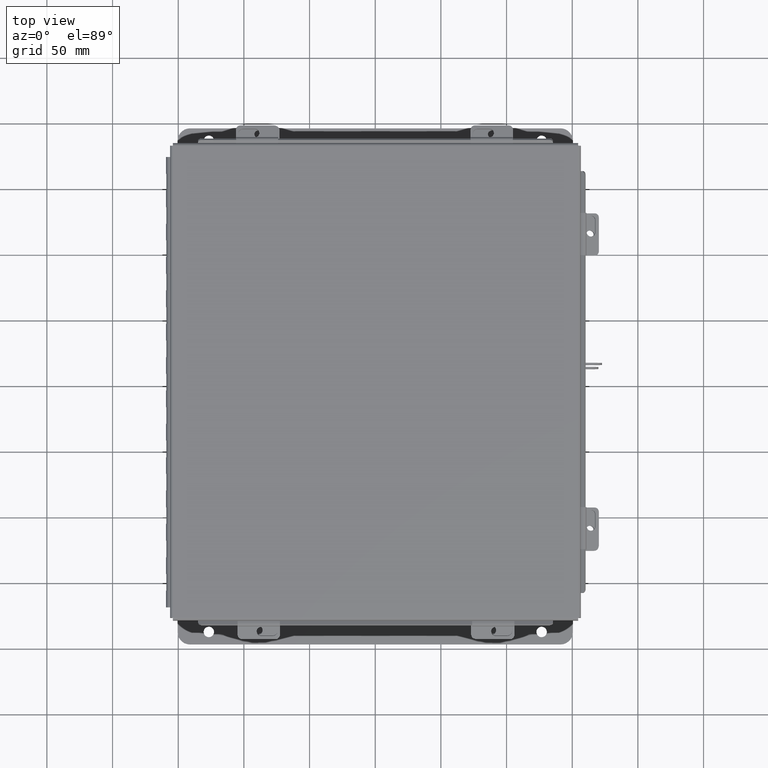
[diagram: clean part render]
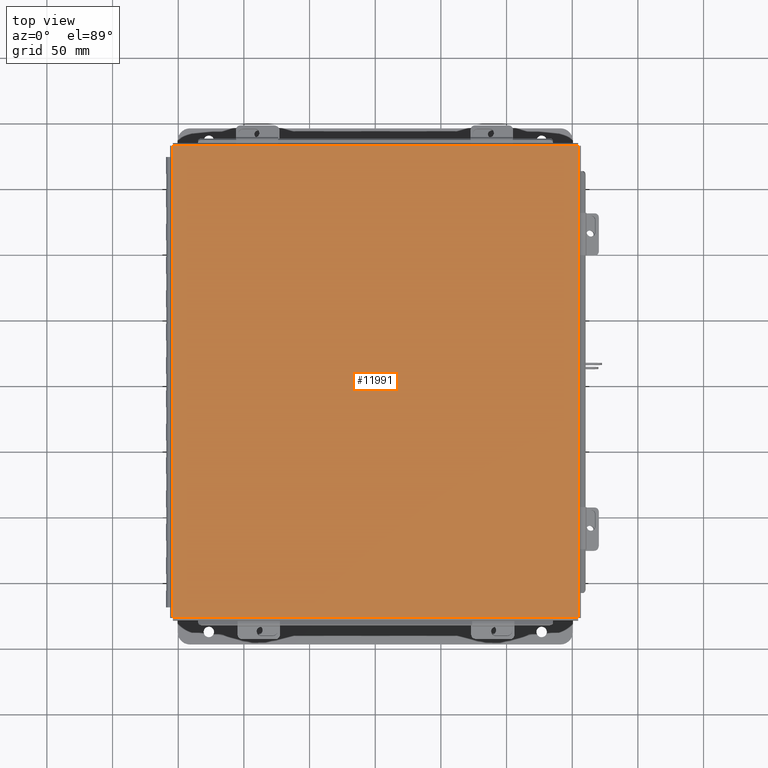
[diagram: same view with one face highlighted and labeled with its STEP entity id]
A machine part, top view. The second image highlights one B-rep face of the part: STEP entity #11991.
In plain terms, the highlighted planar face has unit normal (-0, -0, 1).
Its self-contained STEP definition (entity closure, byte-faithful):
#75 = CARTESIAN_POINT ( 'NONE',  ( -6.068550000000000100, 7.068549999999999200, -0.07469999999999993300 ) ) ;
#991 = CARTESIAN_POINT ( 'NONE',  ( 0.0000000000000000000, 0.0000000000000000000, -0.07470000000000000300 ) ) ;
#1144 = EDGE_CURVE ( 'NONE', #4051, #7149, #7077, .T. ) ;
#1642 = ORIENTED_EDGE ( 'NONE', *, *, #7476, .T. ) ;
#2522 = VECTOR ( 'NONE', #8043, 39.37007874015748100 ) ;
#3156 = VECTOR ( 'NONE', #17241, 39.37007874015748100 ) ;
#4051 = VERTEX_POINT ( 'NONE', #13720 ) ;
#5104 = FACE_OUTER_BOUND ( 'NONE', #17122, .T. ) ;
#5324 = CARTESIAN_POINT ( 'NONE',  ( 6.074478932188137400, -7.068550000000001000, -0.07469999999999993300 ) ) ;
#5441 = DIRECTION ( 'NONE',  ( 0.0000000000000000000, 0.0000000000000000000, -1.000000000000000000 ) ) ;
#5813 = CARTESIAN_POINT ( 'NONE',  ( 6.068550000000000100, 7.074478932188133800, -0.07469999999999880900 ) ) ;
#6088 = VERTEX_POINT ( 'NONE', #7684 ) ;
#6384 = VECTOR ( 'NONE', #15990, 39.37007874015748100 ) ;
#6830 = DIRECTION ( 'NONE',  ( -1.000000000000000000, 0.0000000000000000000, 0.0000000000000000000 ) ) ;
#7077 = LINE ( 'NONE', #9779, #3156 ) ;
#7149 = VERTEX_POINT ( 'NONE', #75 ) ;
#7246 = AXIS2_PLACEMENT_3D ( 'NONE', #991, #5441, #15635 ) ;
#7476 = EDGE_CURVE ( 'NONE', #6088, #4051, #17301, .T. ) ;
#7684 = CARTESIAN_POINT ( 'NONE',  ( 6.068550000000000100, -7.068550000000001000, -0.07469999999999993300 ) ) ;
#7918 = ORIENTED_EDGE ( 'NONE', *, *, #13696, .T. ) ;
#8043 = DIRECTION ( 'NONE',  ( 1.000000000000000000, 0.0000000000000000000, 0.0000000000000000000 ) ) ;
#9779 = CARTESIAN_POINT ( 'NONE',  ( -6.068550000000000100, -7.074478932188136500, -0.07470000000000107100 ) ) ;
#10334 = VERTEX_POINT ( 'NONE', #13244 ) ;
#10494 = ORIENTED_EDGE ( 'NONE', *, *, #1144, .T. ) ;
#11991 = ADVANCED_FACE ( 'NONE', ( #5104 ), #17054, .T. ) ;
#13244 = CARTESIAN_POINT ( 'NONE',  ( 6.068550000000000100, 7.068549999999999200, -0.07469999999999880900 ) ) ;
#13696 = EDGE_CURVE ( 'NONE', #7149, #10334, #18069, .T. ) ;
#13720 = CARTESIAN_POINT ( 'NONE',  ( -6.068550000000000100, -7.068550000000001000, -0.07470000000000107100 ) ) ;
#15635 = DIRECTION ( 'NONE',  ( -1.000000000000000000, 0.0000000000000000000, -0.0000000000000000000 ) ) ;
#15990 = DIRECTION ( 'NONE',  ( -0.0000000000000000000, -1.000000000000000000, -8.208677865577646300E-017 ) ) ;
#16747 = ORIENTED_EDGE ( 'NONE', *, *, #17041, .T. ) ;
#16808 = VECTOR ( 'NONE', #6830, 39.37007874015748100 ) ;
#17041 = EDGE_CURVE ( 'NONE', #10334, #6088, #18472, .T. ) ;
#17054 = PLANE ( 'NONE',  #7246 ) ;
#17122 = EDGE_LOOP ( 'NONE', ( #7918, #16747, #1642, #10494 ) ) ;
#17241 = DIRECTION ( 'NONE',  ( -0.0000000000000000000, 1.000000000000000000, 8.208677865577646300E-017 ) ) ;
#17301 = LINE ( 'NONE', #5324, #16808 ) ;
#18069 = LINE ( 'NONE', #18214, #2522 ) ;
#18214 = CARTESIAN_POINT ( 'NONE',  ( -6.074478932188137400, 7.068549999999999200, -0.07469999999999993300 ) ) ;
#18472 = LINE ( 'NONE', #5813, #6384 ) ;